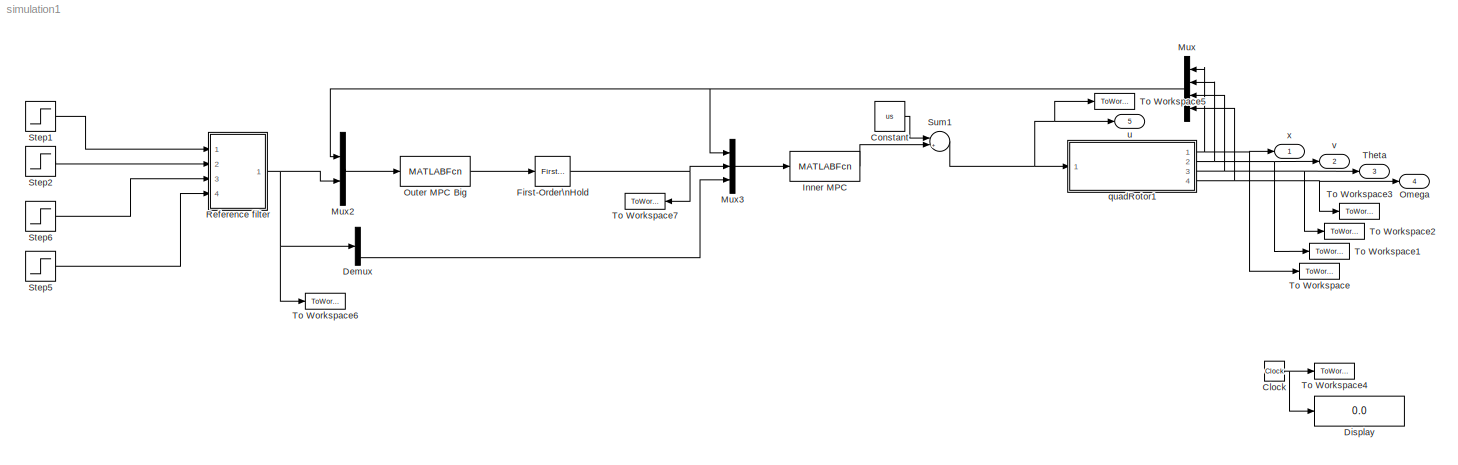
MODEL simulation1
KIND model
CONFIG StopFcn = plotQuadSimResult
BLOCK [Clock] Clock
  SID = 30
BLOCK [Constant] Constant
  SID = 180
  Value = us
BLOCK [Demux] Demux
  DisplayOption = bar
  Ports = [1, 4]
  SID = 83
BLOCK [Display] Display
  Decimation = 1
  Ports = [1]
  SID = 68
BLOCK [Reference] First-Order\nHold  REF=simulink/Discrete/First-Order\nHold
  DisableCoverage = on
  Ports = [1, 1]
  SID = 103
  SourceBlock = simulink/Discrete/First-Order\nHold
  SourceProductBaseCode = SL
  SourceProductName = Simulink
  SourceType = First-Order Hold
  Ts = quad.Ts2
BLOCK [MATLABFcn] Inner MPC
  MATLABFcn = innerController{[u(6:end)]}
  OutputDimensions = 4
  OutputSignalType = real
  Ports = [1, 1]
  SID = 82
  SampleTime = sys.Ts
BLOCK [Mux] Mux
  DisplayOption = bar
  Ports = [4, 1]
  SID = 60
BLOCK [Mux] Mux2
  DisplayOption = bar
  Inputs = [12 4]
  Ports = [2, 1]
  SID = 67
BLOCK [Mux] Mux3
  DisplayOption = bar
  Inputs = [12 3 1]
  Ports = [3, 1]
  SID = 85
BLOCK [Outport] Omega
  IconDisplay = Port number
  Port = 4
  SID = 57
BLOCK [MATLABFcn] Outer MPC Big
  MATLABFcn = outerController{[u([1;4;2;5;3;13;14;15])]}
  OutputDimensions = 3
  OutputSignalType = real
  Ports = [1, 1]
  SID = 166
  SampleTime = quad.Ts2
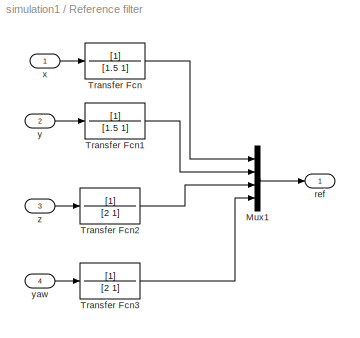
BLOCK [SubSystem] Reference filter
  Ports = [4, 1]
  RequestExecContextInheritance = off
  SID = 145
  Variant = off
BLOCK [Mux] Reference filter/Mux1
  DisplayOption = bar
  Ports = [4, 1]
  SID = 154
BLOCK [TransferFcn] Reference filter/Transfer Fcn
  Denominator = [1.5 1]
  SID = 141
BLOCK [TransferFcn] Reference filter/Transfer Fcn1
  Denominator = [1.5 1]
  SID = 142
BLOCK [TransferFcn] Reference filter/Transfer Fcn2
  Denominator = [2 1]
  SID = 143
BLOCK [TransferFcn] Reference filter/Transfer Fcn3
  Denominator = [2 1]
  SID = 144
BLOCK [Outport] Reference filter/ref
  IconDisplay = Port number
  SID = 155
BLOCK [Inport] Reference filter/x
  IconDisplay = Port number
  SID = 146
BLOCK [Inport] Reference filter/y
  IconDisplay = Port number
  Port = 2
  SID = 148
BLOCK [Inport] Reference filter/yaw
  IconDisplay = Port number
  Port = 4
  SID = 152
BLOCK [Inport] Reference filter/z
  IconDisplay = Port number
  Port = 3
  SID = 150
BLOCK [Step] Step1
  After = 3
  SID = 140
  SampleTime = 0
BLOCK [Step] Step2
  After = 1.5
  SID = 182
  SampleTime = 0
BLOCK [Step] Step5
  After = pi
  SID = 91
  SampleTime = 0
BLOCK [Step] Step6
  After = 2
  SID = 128
  SampleTime = 0
BLOCK [Sum] Sum1
  IconShape = round
  InputSameDT = off
  Inputs = |++
  OutDataTypeStr = Inherit: Inherit via internal rule
  Ports = [2, 1]
  SID = 181
  SaturateOnIntegerOverflow = off
BLOCK [Outport] Theta
  IconDisplay = Port number
  Port = 3
  SID = 56
BLOCK [ToWorkspace] To Workspace
  MaxDataPoints = inf
  Ports = [1]
  SID = 32
  SampleTime = 0.1
  VariableName = x
BLOCK [ToWorkspace] To Workspace1
  MaxDataPoints = inf
  Ports = [1]
  SID = 33
  SampleTime = 0.1
  VariableName = v
BLOCK [ToWorkspace] To Workspace2
  MaxDataPoints = inf
  Ports = [1]
  SID = 34
  SampleTime = 0.1
  VariableName = theta
BLOCK [ToWorkspace] To Workspace3
  MaxDataPoints = inf
  Ports = [1]
  SID = 35
  SampleTime = 0.1
  VariableName = omega
BLOCK [ToWorkspace] To Workspace4
  MaxDataPoints = inf
  Ports = [1]
  SID = 36
  SampleTime = 0.1
  VariableName = t
BLOCK [ToWorkspace] To Workspace5
  MaxDataPoints = inf
  Ports = [1]
  SID = 37
  SampleTime = 0.1
  VariableName = u
BLOCK [ToWorkspace] To Workspace6
  MaxDataPoints = inf
  Ports = [1]
  SID = 79
  SampleTime = 0.1
  VariableName = ref
BLOCK [ToWorkspace] To Workspace7
  MaxDataPoints = inf
  Ports = [1]
  SID = 88
  SampleTime = 0.1
  VariableName = u1
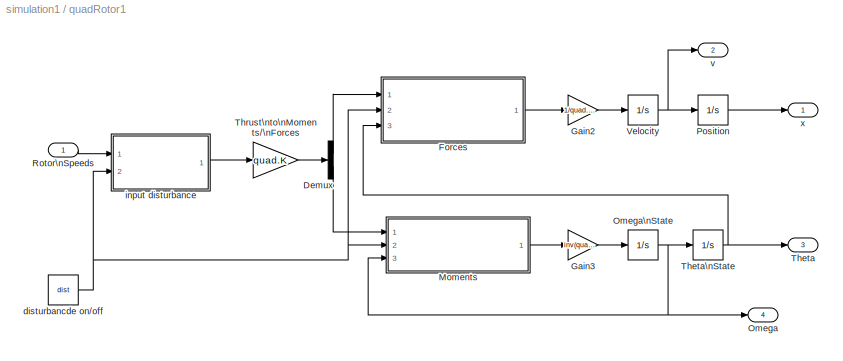
BLOCK [SubSystem] quadRotor1
  Ports = [1, 4]
  RequestExecContextInheritance = off
  SID = 183
  Variant = off
BLOCK [Demux] quadRotor1/Demux
  DisplayOption = bar
  Outputs = [1 3]
  Ports = [1, 2]
  SID = 185
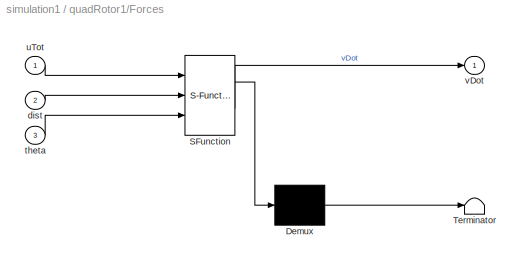
BLOCK [SubSystem] quadRotor1/Forces
  ErrorFcn = Stateflow.Translate.translate
  PermitHierarchicalResolution = ExplicitOnly
  Ports = [3, 1]
  RequestExecContextInheritance = off
  SFBlockType = MATLAB Function
  SID = 186
  TreatAsAtomicUnit = on
  Variant = off
BLOCK [Demux] quadRotor1/Forces/ Demux 
  Outputs = 1
  Ports = [1, 1]
  SID = 186::31
BLOCK [S-Function] quadRotor1/Forces/ SFunction 
  EnableBusSupport = on
  FunctionName = sf_sfun
  Parameters = quad
  PortCounts = [3 2]
  Ports = [3, 2]
  SFcnIsStateOwnerBlock = off
  SFunctionDeploymentMode = off
  SID = 186::30
  Tag = Stateflow S-Function simulation1 3
BLOCK [Terminator] quadRotor1/Forces/ Terminator 
  SID = 186::32
BLOCK [Inport] quadRotor1/Forces/dist
  IconDisplay = Port number
  Port = 2
  SID = 186::29
BLOCK [Inport] quadRotor1/Forces/theta
  IconDisplay = Port number
  Port = 3
  SID = 186::18
BLOCK [Inport] quadRotor1/Forces/uTot
  IconDisplay = Port number
  SID = 186::1
BLOCK [Outport] quadRotor1/Forces/vDot
  IconDisplay = Port number
  SID = 186::5
BLOCK [Gain] quadRotor1/Gain2
  Gain = 1/quad.mass
  OutDataTypeStr = Inherit: Inherit via internal rule
  ParamDataTypeStr = Inherit: Inherit via internal rule
  SID = 187
  SaturateOnIntegerOverflow = off
BLOCK [Gain] quadRotor1/Gain3
  Gain = inv(quad.I)
  Multiplication = Matrix(K*u)
  OutDataTypeStr = Inherit: Inherit via internal rule
  ParamDataTypeStr = Inherit: Inherit via internal rule
  SID = 188
  SaturateOnIntegerOverflow = off
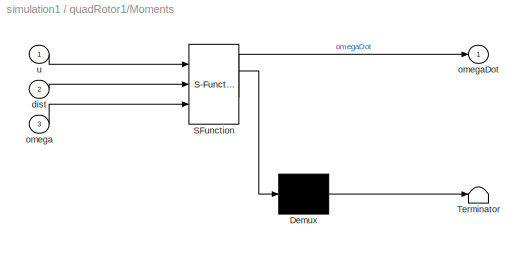
BLOCK [SubSystem] quadRotor1/Moments
  ErrorFcn = Stateflow.Translate.translate
  PermitHierarchicalResolution = ExplicitOnly
  Ports = [3, 1]
  RequestExecContextInheritance = off
  SFBlockType = MATLAB Function
  SID = 189
  TreatAsAtomicUnit = on
  Variant = off
BLOCK [Demux] quadRotor1/Moments/ Demux 
  Outputs = 1
  Ports = [1, 1]
  SID = 189::31
BLOCK [S-Function] quadRotor1/Moments/ SFunction 
  EnableBusSupport = on
  FunctionName = sf_sfun
  Parameters = quad
  PortCounts = [3 2]
  Ports = [3, 2]
  SFcnIsStateOwnerBlock = off
  SFunctionDeploymentMode = off
  SID = 189::30
  Tag = Stateflow S-Function simulation1 4
BLOCK [Terminator] quadRotor1/Moments/ Terminator 
  SID = 189::32
BLOCK [Inport] quadRotor1/Moments/dist
  IconDisplay = Port number
  Port = 2
  SID = 189::29
BLOCK [Inport] quadRotor1/Moments/omega
  IconDisplay = Port number
  Port = 3
  SID = 189::18
BLOCK [Outport] quadRotor1/Moments/omegaDot
  IconDisplay = Port number
  SID = 189::5
BLOCK [Inport] quadRotor1/Moments/u
  IconDisplay = Port number
  SID = 189::1
BLOCK [Outport] quadRotor1/Omega
  IconDisplay = Port number
  Port = 4
  SID = 200
BLOCK [Integrator] quadRotor1/Omega\nState
  InitialCondition = [0;0;0]
  Ports = [1, 1]
  SID = 190
BLOCK [Integrator] quadRotor1/Position
  InitialCondition = [0;0;0]
  Ports = [1, 1]
  SID = 191
BLOCK [Inport] quadRotor1/Rotor\nSpeeds
  IconDisplay = Port number
  SID = 184
BLOCK [Outport] quadRotor1/Theta
  IconDisplay = Port number
  Port = 3
  SID = 199
BLOCK [Integrator] quadRotor1/Theta\nState
  InitialCondition = [0;0;0]
  Ports = [1, 1]
  SID = 192
BLOCK [Gain] quadRotor1/Thrust\nto\nMoments//\nForces
  Gain = quad.K
  Multiplication = Matrix(K*u)
  OutDataTypeStr = Inherit: Inherit via internal rule
  ParamDataTypeStr = Inherit: Inherit via internal rule
  SID = 193
  SaturateOnIntegerOverflow = off
BLOCK [Integrator] quadRotor1/Velocity
  InitialCondition = [0;0;0]
  Ports = [1, 1]
  SID = 194
BLOCK [Constant] quadRotor1/disturbancde on//off
  SID = 195
  Value = dist
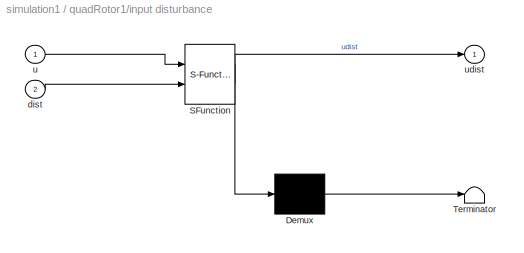
BLOCK [SubSystem] quadRotor1/input disturbance
  ErrorFcn = Stateflow.Translate.translate
  PermitHierarchicalResolution = ExplicitOnly
  Ports = [2, 1]
  RequestExecContextInheritance = off
  SFBlockType = MATLAB Function
  SID = 196
  TreatAsAtomicUnit = on
  Variant = off
BLOCK [Demux] quadRotor1/input disturbance/ Demux 
  Outputs = 1
  Ports = [1, 1]
  SID = 196::31
BLOCK [S-Function] quadRotor1/input disturbance/ SFunction 
  EnableBusSupport = on
  FunctionName = sf_sfun
  PortCounts = [2 2]
  Ports = [2, 2]
  SFcnIsStateOwnerBlock = off
  SFunctionDeploymentMode = off
  SID = 196::30
  Tag = Stateflow S-Function simulation1 5
BLOCK [Terminator] quadRotor1/input disturbance/ Terminator 
  SID = 196::32
BLOCK [Inport] quadRotor1/input disturbance/dist
  IconDisplay = Port number
  Port = 2
  SID = 196::29
BLOCK [Inport] quadRotor1/input disturbance/u
  IconDisplay = Port number
  SID = 196::1
BLOCK [Outport] quadRotor1/input disturbance/udist
  IconDisplay = Port number
  SID = 196::5
BLOCK [Outport] quadRotor1/v
  IconDisplay = Port number
  Port = 2
  SID = 198
BLOCK [Outport] quadRotor1/x
  IconDisplay = Port number
  SID = 197
BLOCK [Outport] u
  IconDisplay = Port number
  Port = 5
  SID = 58
BLOCK [Outport] v
  IconDisplay = Port number
  Port = 2
  SID = 55
BLOCK [Outport] x
  IconDisplay = Port number
  SID = 54
NET Clock:1 -> Display:1, To Workspace4:1
LINE Constant:1 -> Sum1:1
LINE Demux:4 -> Mux3:3
NET First-Order\nHold:1 -> Mux3:2, To Workspace7:1
LINE Inner MPC:1 -> Sum1:2
LINE Mux2:1 -> Outer MPC Big:1
LINE Mux3:1 -> Inner MPC:1
NET Mux:1 -> Mux2:1, Mux3:1
LINE Outer MPC Big:1 -> First-Order\nHold:1
LINE Reference filter/Mux1:1 -> Reference filter/ref:1
LINE Reference filter/Transfer Fcn1:1 -> Reference filter/Mux1:2
LINE Reference filter/Transfer Fcn2:1 -> Reference filter/Mux1:3
LINE Reference filter/Transfer Fcn3:1 -> Reference filter/Mux1:4
LINE Reference filter/Transfer Fcn:1 -> Reference filter/Mux1:1
LINE Reference filter/x:1 -> Reference filter/Transfer Fcn:1
LINE Reference filter/y:1 -> Reference filter/Transfer Fcn1:1
LINE Reference filter/yaw:1 -> Reference filter/Transfer Fcn3:1
LINE Reference filter/z:1 -> Reference filter/Transfer Fcn2:1
NET Reference filter:1 -> Demux:1, Mux2:2, To Workspace6:1
LINE Step1:1 -> Reference filter:1
LINE Step2:1 -> Reference filter:2
LINE Step5:1 -> Reference filter:4
LINE Step6:1 -> Reference filter:3
NET Sum1:1 -> To Workspace5:1, quadRotor1:1, u:1
LINE quadRotor1/Demux:1 -> quadRotor1/Forces:1
LINE quadRotor1/Demux:2 -> quadRotor1/Moments:1
LINE quadRotor1/Forces/ Demux :1 -> quadRotor1/Forces/ Terminator :1
LINE quadRotor1/Forces/ SFunction :1 -> quadRotor1/Forces/ Demux :1
LINE quadRotor1/Forces/ SFunction :2 -> quadRotor1/Forces/vDot:1
LINE quadRotor1/Forces/dist:1 -> quadRotor1/Forces/ SFunction :2
LINE quadRotor1/Forces/theta:1 -> quadRotor1/Forces/ SFunction :3
LINE quadRotor1/Forces/uTot:1 -> quadRotor1/Forces/ SFunction :1
LINE quadRotor1/Forces:1 -> quadRotor1/Gain2:1
LINE quadRotor1/Gain2:1 -> quadRotor1/Velocity:1
LINE quadRotor1/Gain3:1 -> quadRotor1/Omega\nState:1
LINE quadRotor1/Moments/ Demux :1 -> quadRotor1/Moments/ Terminator :1
LINE quadRotor1/Moments/ SFunction :1 -> quadRotor1/Moments/ Demux :1
LINE quadRotor1/Moments/ SFunction :2 -> quadRotor1/Moments/omegaDot:1
LINE quadRotor1/Moments/dist:1 -> quadRotor1/Moments/ SFunction :2
LINE quadRotor1/Moments/omega:1 -> quadRotor1/Moments/ SFunction :3
LINE quadRotor1/Moments/u:1 -> quadRotor1/Moments/ SFunction :1
LINE quadRotor1/Moments:1 -> quadRotor1/Gain3:1
NET quadRotor1/Omega\nState:1 -> quadRotor1/Moments:3, quadRotor1/Omega:1, quadRotor1/Theta\nState:1
LINE quadRotor1/Position:1 -> quadRotor1/x:1
LINE quadRotor1/Rotor\nSpeeds:1 -> quadRotor1/input disturbance:1
NET quadRotor1/Theta\nState:1 -> quadRotor1/Forces:3, quadRotor1/Theta:1
LINE quadRotor1/Thrust\nto\nMoments//\nForces:1 -> quadRotor1/Demux:1
NET quadRotor1/Velocity:1 -> quadRotor1/Position:1, quadRotor1/v:1
NET quadRotor1/disturbancde on//off:1 -> quadRotor1/Forces:2, quadRotor1/Moments:2, quadRotor1/input disturbance:2
LINE quadRotor1/input disturbance/ Demux :1 -> quadRotor1/input disturbance/ Terminator :1
LINE quadRotor1/input disturbance/ SFunction :1 -> quadRotor1/input disturbance/ Demux :1
LINE quadRotor1/input disturbance/ SFunction :2 -> quadRotor1/input disturbance/udist:1
LINE quadRotor1/input disturbance/dist:1 -> quadRotor1/input disturbance/ SFunction :2
LINE quadRotor1/input disturbance/u:1 -> quadRotor1/input disturbance/ SFunction :1
LINE quadRotor1/input disturbance:1 -> quadRotor1/Thrust\nto\nMoments//\nForces:1
NET quadRotor1:1 -> Mux:1, To Workspace:1, x:1
NET quadRotor1:2 -> Mux:2, To Workspace1:1, v:1
NET quadRotor1:3 -> Mux:3, Theta:1, To Workspace2:1
NET quadRotor1:4 -> Mux:4, Omega:1, To Workspace3:1
note: NET lines group one-source signal fan-out (src -> all destinations, sorted); 1:1 wires keep LINE
CHART quadRotor1/Forces states=1 transitions=1
  STATE_LABEL 'eML_blk_kernel()'
CHART quadRotor1/Moments states=1 transitions=1
  STATE_LABEL 'eML_blk_kernel()'
CHART quadRotor1/input disturbance states=1 transitions=1
  STATE_LABEL 'eML_blk_kernel()'
